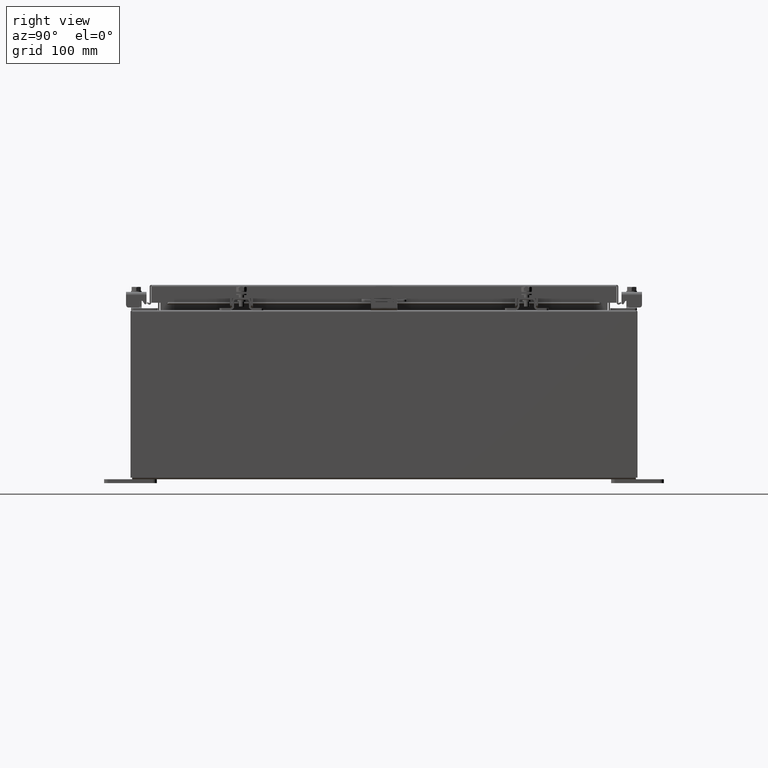
[diagram: clean part render]
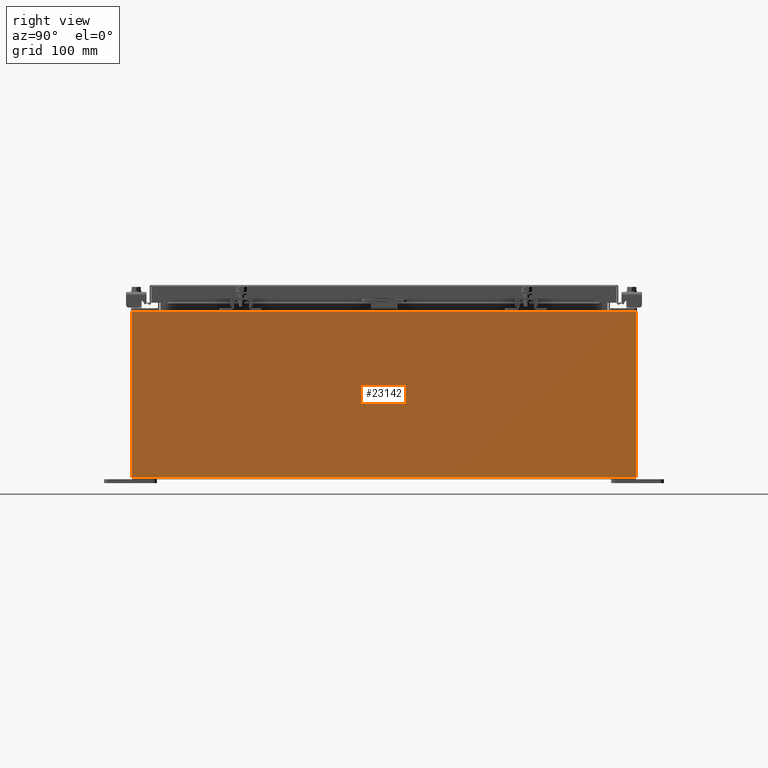
[diagram: same view with one face highlighted and labeled with its STEP entity id]
A machine part, right view. The second image highlights one B-rep face of the part: STEP entity #23142.
In plain terms, the highlighted planar face has unit normal (-1, 0, 0).
Its self-contained STEP definition (entity closure, byte-faithful):
#422 = VECTOR ( 'NONE', #23531, 39.37007874015748100 ) ;
#832 = VERTEX_POINT ( 'NONE', #24864 ) ;
#2614 = DIRECTION ( 'NONE',  ( -0.0000000000000000000, -1.000000000000000000, -0.0000000000000000000 ) ) ;
#3015 = CARTESIAN_POINT ( 'NONE',  ( 10.00000000000000000, -11.92530000000000000, 0.01299999999999983600 ) ) ;
#3164 = CARTESIAN_POINT ( 'NONE',  ( 10.00000000000000000, -11.92530000000000000, 0.01299999999999984700 ) ) ;
#4617 = DIRECTION ( 'NONE',  ( -3.584876173029202900E-015, 0.0000000000000000000, -1.000000000000000000 ) ) ;
#5302 = VERTEX_POINT ( 'NONE', #22647 ) ;
#5970 = ORIENTED_EDGE ( 'NONE', *, *, #6344, .F. ) ;
#6344 = EDGE_CURVE ( 'NONE', #5302, #11468, #12069, .T. ) ;
#6409 = VECTOR ( 'NONE', #2614, 39.37007874015748100 ) ;
#6616 = CARTESIAN_POINT ( 'NONE',  ( 10.00000000000000000, -11.92530000000000000, -3.610957538630361200E-014 ) ) ;
#7431 = AXIS2_PLACEMENT_3D ( 'NONE', #12667, #29490, #29854 ) ;
#10351 = LINE ( 'NONE', #25275, #21352 ) ;
#11468 = VERTEX_POINT ( 'NONE', #3015 ) ;
#12069 = LINE ( 'NONE', #3164, #6409 ) ;
#12352 = ORIENTED_EDGE ( 'NONE', *, *, #28439, .T. ) ;
#12667 = CARTESIAN_POINT ( 'NONE',  ( 10.00000000000000000, 0.0000000000000000000, -3.610957538630361200E-014 ) ) ;
#13254 = VECTOR ( 'NONE', #4617, 39.37007874015748100 ) ;
#16648 = EDGE_CURVE ( 'NONE', #5302, #832, #22450, .T. ) ;
#16671 = CARTESIAN_POINT ( 'NONE',  ( 10.00000000000002800, -11.92530000000000000, 7.837599999999998300 ) ) ;
#19288 = FACE_OUTER_BOUND ( 'NONE', #28782, .T. ) ;
#20950 = DIRECTION ( 'NONE',  ( -0.0000000000000000000, -1.000000000000000000, -0.0000000000000000000 ) ) ;
#21352 = VECTOR ( 'NONE', #20950, 39.37007874015748100 ) ;
#22450 = LINE ( 'NONE', #23712, #422 ) ;
#22647 = CARTESIAN_POINT ( 'NONE',  ( 10.00000000000000000, 11.92529999999999800, 0.01299999999999984700 ) ) ;
#23142 = ADVANCED_FACE ( 'NONE', ( #19288 ), #25591, .F. ) ;
#23323 = ORIENTED_EDGE ( 'NONE', *, *, #16648, .T. ) ;
#23531 = DIRECTION ( 'NONE',  ( 3.584876173029202900E-015, 0.0000000000000000000, 1.000000000000000000 ) ) ;
#23712 = CARTESIAN_POINT ( 'NONE',  ( 10.00000000000000000, 11.92530000000000000, -3.610957538630361200E-014 ) ) ;
#24731 = LINE ( 'NONE', #6616, #13254 ) ;
#24864 = CARTESIAN_POINT ( 'NONE',  ( 10.00000000000002800, 11.92529999999999800, 7.837599999999992100 ) ) ;
#25275 = CARTESIAN_POINT ( 'NONE',  ( 10.00000000000002800, 11.92530000000000000, 7.837599999999992100 ) ) ;
#25591 = PLANE ( 'NONE',  #7431 ) ;
#27170 = ORIENTED_EDGE ( 'NONE', *, *, #28365, .T. ) ;
#27655 = VERTEX_POINT ( 'NONE', #16671 ) ;
#28365 = EDGE_CURVE ( 'NONE', #27655, #11468, #24731, .T. ) ;
#28439 = EDGE_CURVE ( 'NONE', #832, #27655, #10351, .T. ) ;
#28782 = EDGE_LOOP ( 'NONE', ( #12352, #27170, #5970, #23323 ) ) ;
#29490 = DIRECTION ( 'NONE',  ( -1.000000000000000000, 0.0000000000000000000, 3.584876173029202900E-015 ) ) ;
#29854 = DIRECTION ( 'NONE',  ( 3.584876173029202900E-015, 0.0000000000000000000, 1.000000000000000000 ) ) ;